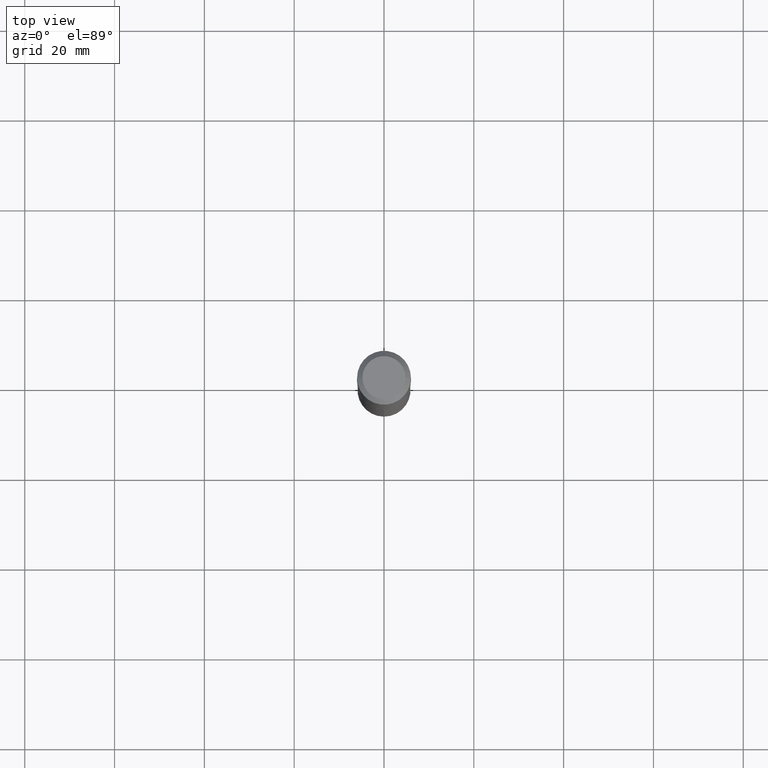
[diagram: clean part render]
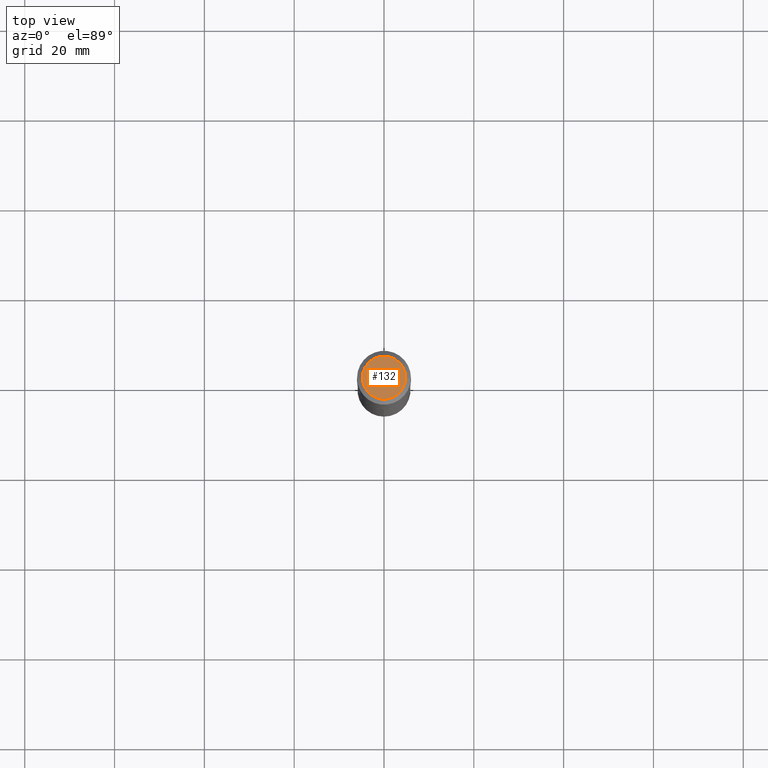
[diagram: same view with one face highlighted and labeled with its STEP entity id]
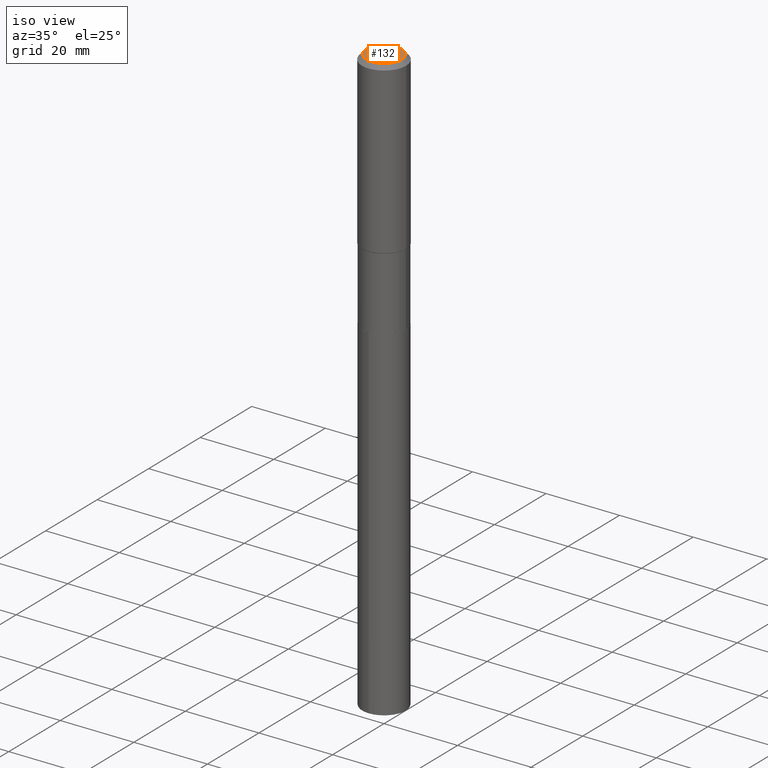
[diagram: same view with one face highlighted and labeled with its STEP entity id]
A machine part, top view. The second image highlights one B-rep face of the part: STEP entity #132.
A second angle (iso view) of the same face is appended — the face is thin or edge-on in the first view.
In plain terms, the highlighted planar face has unit normal (0, -0, -1).
Its self-contained STEP definition (entity closure, byte-faithful):
#55 = DIRECTION ( 'NONE',  ( -2.445468806185136597E-29, 3.491481338843145583E-15, 1.000000000000000000 ) ) ;
#62 = EDGE_CURVE ( 'NONE', #107, #417, #183, .T. ) ;
#79 = PLANE ( 'NONE',  #128 ) ;
#107 = VERTEX_POINT ( 'NONE', #295 ) ;
#116 = FACE_OUTER_BOUND ( 'NONE', #285, .T. ) ;
#128 = AXIS2_PLACEMENT_3D ( 'NONE', #224, #372, #463 ) ;
#132 = ADVANCED_FACE ( 'NONE', ( #116 ), #79, .F. ) ;
#133 = CARTESIAN_POINT ( 'NONE',  ( -9.427742298522546243E-47, 1.346031739168365344E-32, 3.855188123715862256E-18 ) ) ;
#183 = CIRCLE ( 'NONE', #287, 0.1889600000000000168 ) ;
#202 = EDGE_CURVE ( 'NONE', #417, #107, #361, .T. ) ;
#224 = CARTESIAN_POINT ( 'NONE',  ( -4.713871149261273121E-47, 6.730158695841826722E-33, 1.927594061857931128E-18 ) ) ;
#271 = AXIS2_PLACEMENT_3D ( 'NONE', #133, #55, #301 ) ;
#285 = EDGE_LOOP ( 'NONE', ( #433, #455 ) ) ;
#287 = AXIS2_PLACEMENT_3D ( 'NONE', #490, #357, #466 ) ;
#295 = CARTESIAN_POINT ( 'NONE',  ( -0.1889600000000000168, 1.401969416799070942E-15, 3.855188123706346622E-18 ) ) ;
#301 = DIRECTION ( 'NONE',  ( 1.000000000000000000, -6.982962677686266711E-15, 4.876185090822587894E-29 ) ) ;
#357 = DIRECTION ( 'NONE',  ( -2.445468806185136597E-29, 3.491481338843145583E-15, 1.000000000000000000 ) ) ;
#361 = CIRCLE ( 'NONE', #271, 0.1889600000000000168 ) ;
#372 = DIRECTION ( 'NONE',  ( 2.438088387897960049E-29, -3.491481338843145188E-15, -1.000000000000000000 ) ) ;
#417 = VERTEX_POINT ( 'NONE', #453 ) ;
#433 = ORIENTED_EDGE ( 'NONE', *, *, #62, .T. ) ;
#453 = CARTESIAN_POINT ( 'NONE',  ( 0.1889600000000000168, -1.540873453589747935E-15, 3.855188123725863225E-18 ) ) ;
#455 = ORIENTED_EDGE ( 'NONE', *, *, #202, .T. ) ;
#463 = DIRECTION ( 'NONE',  ( -1.000000000000000000, 6.982962677686265922E-15, -4.876176775795935793E-29 ) ) ;
#466 = DIRECTION ( 'NONE',  ( 1.000000000000000000, -6.982962677686266711E-15, 4.876185090822587894E-29 ) ) ;
#490 = CARTESIAN_POINT ( 'NONE',  ( -9.427742298522546243E-47, 1.346031739168365344E-32, 3.855188123715862256E-18 ) ) ;